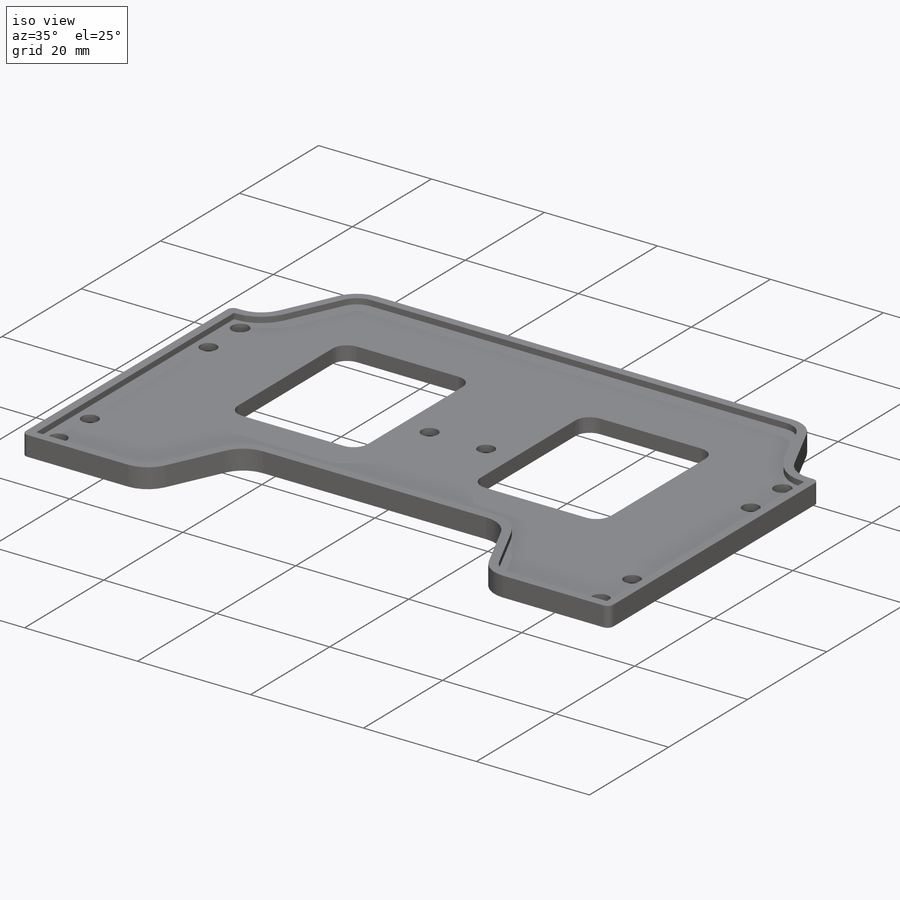
[diagram: iso view]
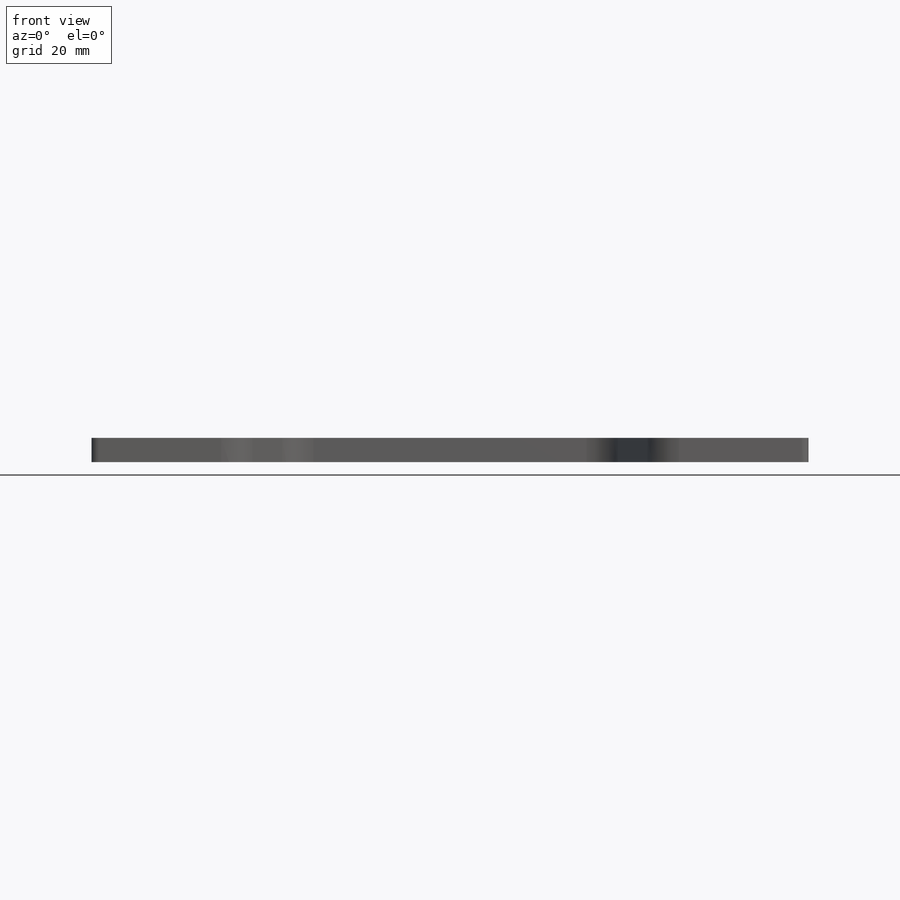
[diagram: front view]
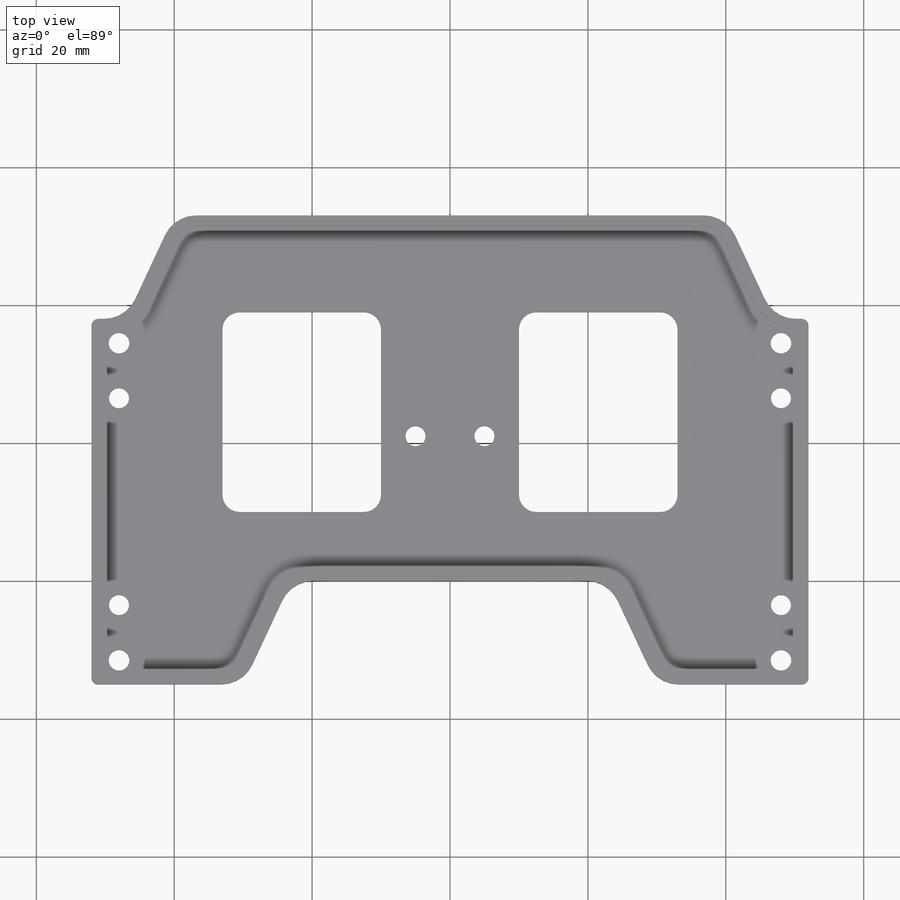
[diagram: top view]
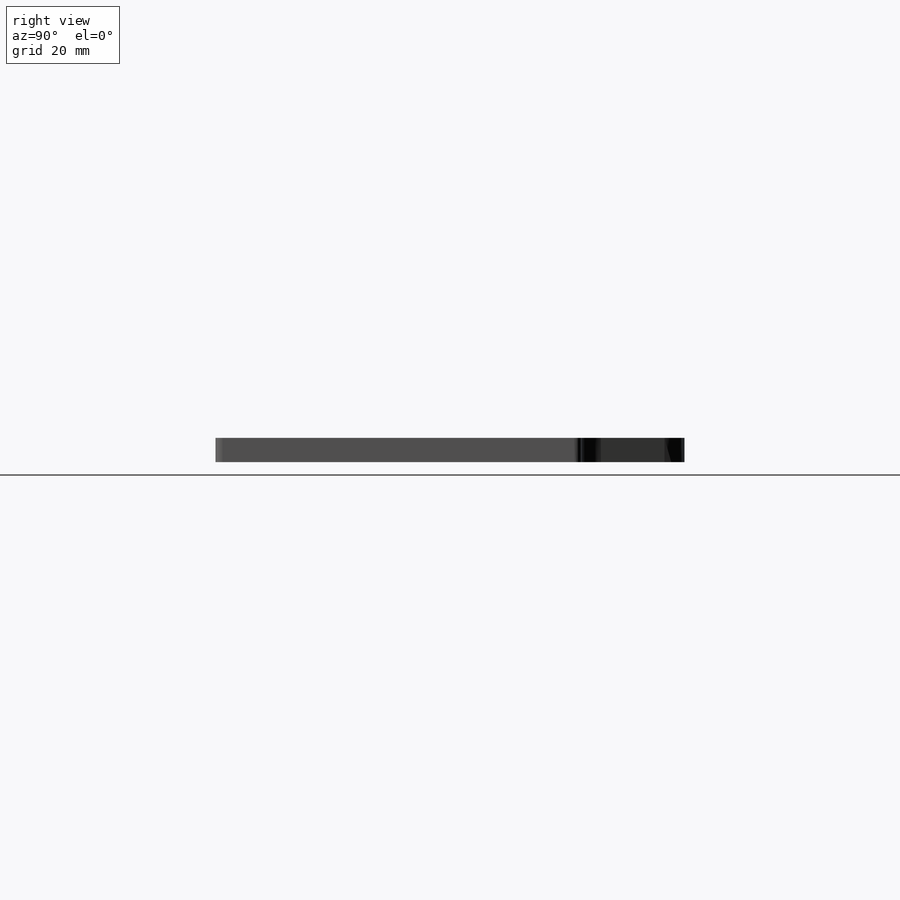
[diagram: right view]
SOLIDWORKS PART (.sldprt)
format: sldprt  version: not decoded by parser v0  size: 787,456 bytes
history: native  units: mm
features: sketch x6, fillet x3, cut_extrude x3, material x1, extrude x1, hole x1, mirror x1 (+12 scaffold rows collapsed)
feature tree (28):
  scaffold x12  (default folders/planes/origin — collapsed)
  material  "Delrin 2700 NC010, Low Viscosity Acetal Copolymer (SS)"
  sketch  "Sketch1"  dims[c1.D1=9.0mm c1.D6=9.0mm c1.D9=5.0mm c1.D10=6.0mm c2.D1=40.0mm c2.D2=9.0mm c2.D3=15.0mm c2.D4=70.0mm c2.D5=90.0mm c2.D7=2.0mm c2.D8=34.0mm c2.D9=5.0mm c3.D7=37.0mm c3.D1=52.0mm c3.D2=68.0mm c3.D3=22.0mm c3.D4=7.0mm c3.D5=15.0mm c3.D6=5.0mm c4.D7=15.0mm]
  extrude  "Boss-Extrude1"  Depth=3.5mm
  fillet  "Fillet1"  Radius=5mm
  fillet  "Fillet2"  Radius=1mm
  hole  "CSK for M2.5 Flat Head Machine Screw1"  Diameter=2.9mm Depth=3.5mm
  sketch  "Sketch5"  dims[D1=5.0mm D2=48.0mm D3=30.0mm D4=36.0mm D5=11.5mm]
  sketch  "Sketch4"  dims[hole-wizard template sketch: 55 standard entries collapsed; hole parameters kept: c17.Thru Hole Depth=3.5mm c17.Near C'Sink Dia.=5.5mm c17.D4=~3.666174mm c17.Near C'Sink Angle=90.0deg]
  sketch  "Sketch6"  dims[c1.D1=3.0mm c1.D2=3.0mm c2.D1=~54.436195mm c2.D2=46.0mm]
  cut_extrude  "Cut-Extrude3"  [1 undecoded]
  sketch  "Sketch7"  dims[D1=29.0mm D2=23.0mm D3=10.0mm D4=10.0mm]
  cut_extrude  "Cut-Extrude4"  [1 undecoded]
  fillet  "Fillet3"  Radius=2.5mm
  mirror  "Mirror1"
  sketch  "Sketch2"  dims[D1=1.5mm]
  cut_extrude  "Cut-Extrude2"  Depth=1mm
decode coverage: 12 of 15 modeling features carry decoded parameters
note: ~ marks probable driven/reference dimensions
note: 2 parameter values undecoded
note: suppression state not decoded; provenance and decode notes live in map.json
